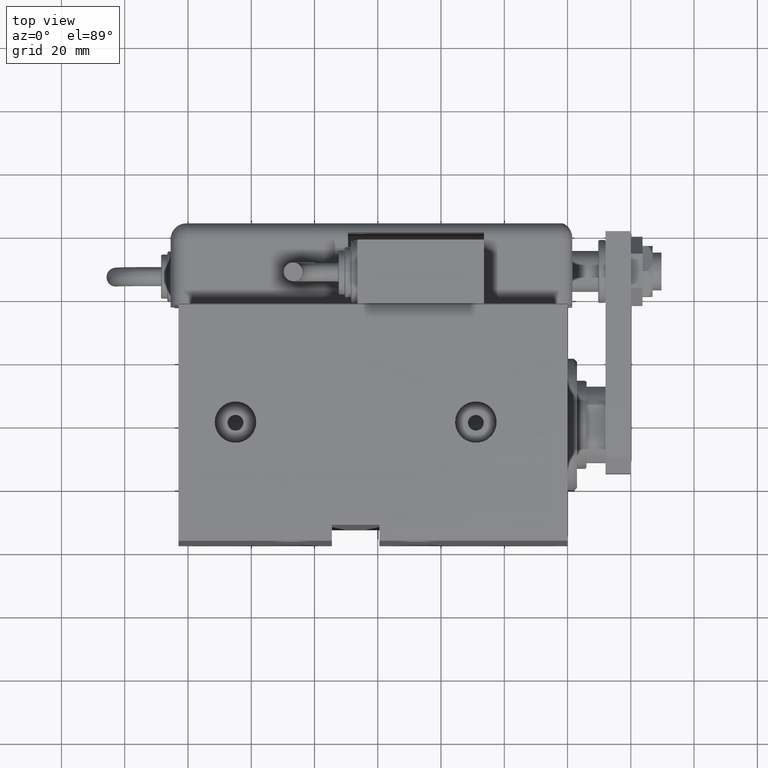
[diagram: clean part render]
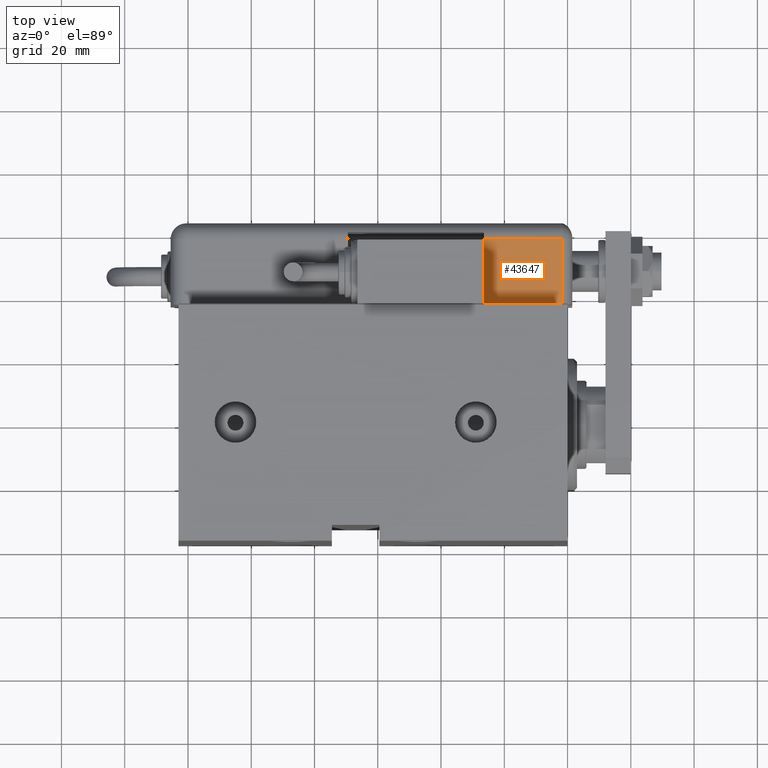
[diagram: same view with one face highlighted and labeled with its STEP entity id]
A machine part, top view. The second image highlights one B-rep face of the part: STEP entity #43647.
In plain terms, the highlighted planar face has unit normal (0, 0, -1).
Its self-contained STEP definition (entity closure, byte-faithful):
#754 = DIRECTION ( 'NONE',  ( 0.000000000000000000, 0.000000000000000000, -1.000000000000000000 ) ) ;
#1461 = VECTOR ( 'NONE', #754, 1000.000000000000000 ) ;
#5181 = VERTEX_POINT ( 'NONE', #40516 ) ;
#5651 = LINE ( 'NONE', #34508, #56728 ) ;
#7418 = EDGE_CURVE ( 'NONE', #5181, #57080, #15968, .T. ) ;
#8891 = VECTOR ( 'NONE', #20226, 1000.000000000000000 ) ;
#9667 = ORIENTED_EDGE ( 'NONE', *, *, #20225, .F. ) ;
#10968 = EDGE_CURVE ( 'NONE', #37251, #48327, #19868, .T. ) ;
#12003 = CARTESIAN_POINT ( 'NONE',  ( -28.99999999999999645, 20.79999999999998295, 99.00000000000000000 ) ) ;
#13571 = CARTESIAN_POINT ( 'NONE',  ( -28.99999999999999645, 25.79999999999998295, 124.0000000000000000 ) ) ;
#15968 = LINE ( 'NONE', #25093, #8891 ) ;
#19868 = LINE ( 'NONE', #33863, #1461 ) ;
#20225 = EDGE_CURVE ( 'NONE', #57080, #48327, #5651, .T. ) ;
#20226 = DIRECTION ( 'NONE',  ( -0.000000000000000000, -0.000000000000000000, -1.000000000000000000 ) ) ;
#21433 = CARTESIAN_POINT ( 'NONE',  ( -28.99999999999999645, 25.79999999999998295, 124.0000000000000000 ) ) ;
#21737 = LINE ( 'NONE', #21433, #38359 ) ;
#22332 = DIRECTION ( 'NONE',  ( 0.000000000000000000, -1.000000000000000000, 0.000000000000000000 ) ) ;
#23017 = AXIS2_PLACEMENT_3D ( 'NONE', #13571, #36394, #31829 ) ;
#25093 = CARTESIAN_POINT ( 'NONE',  ( -28.99999999999999645, -9.421223957302265857E-15, 124.0000000000000000 ) ) ;
#27136 = ORIENTED_EDGE ( 'NONE', *, *, #31781, .F. ) ;
#29634 = DIRECTION ( 'NONE',  ( -0.000000000000000000, 1.000000000000000000, -0.000000000000000000 ) ) ;
#31781 = EDGE_CURVE ( 'NONE', #37251, #5181, #21737, .T. ) ;
#31829 = DIRECTION ( 'NONE',  ( -0.000000000000000000, 0.000000000000000000, -1.000000000000000000 ) ) ;
#33129 = CARTESIAN_POINT ( 'NONE',  ( -28.99999999999999645, 20.79999999999998295, 124.0000000000000000 ) ) ;
#33863 = CARTESIAN_POINT ( 'NONE',  ( -28.99999999999999645, 20.79999999999998295, 124.0000000000000000 ) ) ;
#34508 = CARTESIAN_POINT ( 'NONE',  ( -28.99999999999999645, 22.99999999999998934, 99.00000000000000000 ) ) ;
#36177 = CARTESIAN_POINT ( 'NONE',  ( -28.99999999999999645, -9.421223957302265857E-15, 99.00000000000000000 ) ) ;
#36394 = DIRECTION ( 'NONE',  ( 1.000000000000000000, 0.000000000000000000, -0.000000000000000000 ) ) ;
#36685 = FACE_OUTER_BOUND ( 'NONE', #41454, .T. ) ;
#37251 = VERTEX_POINT ( 'NONE', #33129 ) ;
#38359 = VECTOR ( 'NONE', #22332, 1000.000000000000000 ) ;
#40516 = CARTESIAN_POINT ( 'NONE',  ( -28.99999999999999645, -9.421223957302265857E-15, 124.0000000000000000 ) ) ;
#41454 = EDGE_LOOP ( 'NONE', ( #57001, #9667, #59587, #27136 ) ) ;
#43647 = ADVANCED_FACE ( 'NONE', ( #36685 ), #55548, .F. ) ;
#48327 = VERTEX_POINT ( 'NONE', #12003 ) ;
#55548 = PLANE ( 'NONE',  #23017 ) ;
#56728 = VECTOR ( 'NONE', #29634, 1000.000000000000000 ) ;
#57001 = ORIENTED_EDGE ( 'NONE', *, *, #10968, .T. ) ;
#57080 = VERTEX_POINT ( 'NONE', #36177 ) ;
#59587 = ORIENTED_EDGE ( 'NONE', *, *, #7418, .F. ) ;